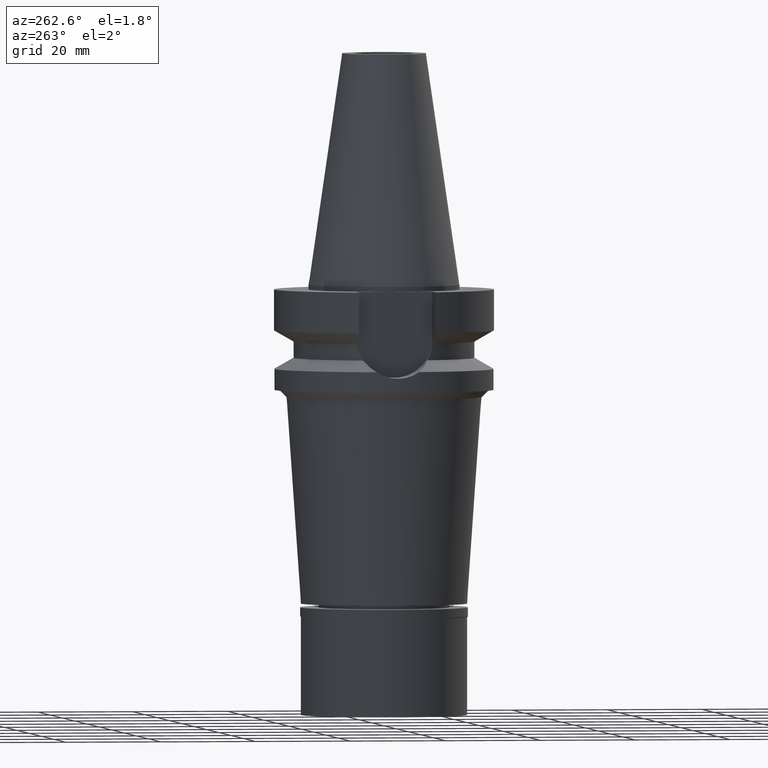
[diagram: clean part render]
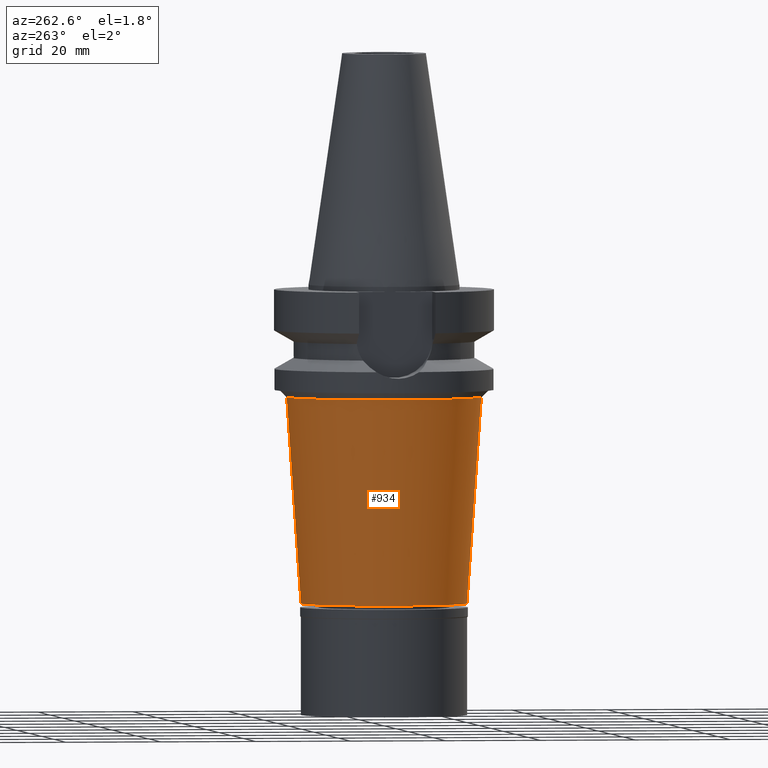
[diagram: same view with one face highlighted and labeled with its STEP entity id]
A machine part, auxiliary view. The second image highlights one B-rep face of the part: STEP entity #934.
In plain terms, the highlighted conical surface has half-angle 4 deg.
Its self-contained STEP definition (entity closure, byte-faithful):
#63 = AXIS2_PLACEMENT_3D ( 'NONE', #1714, #2460, #556 ) ;
#67 = VECTOR ( 'NONE', #2637, 1000.000000000000000 ) ;
#78 = CARTESIAN_POINT ( 'NONE',  ( 0.0000000000000000000, 0.0000000000000000000, -66.69999999999998863 ) ) ;
#270 = CARTESIAN_POINT ( 'NONE',  ( 0.0000000000000000000, 20.52083827595999921, -23.50000000000000000 ) ) ;
#455 = AXIS2_PLACEMENT_3D ( 'NONE', #484, #1212, #2166 ) ;
#484 = CARTESIAN_POINT ( 'NONE',  ( 0.0000000000000000000, 0.0000000000000000000, -45.10000000000000142 ) ) ;
#514 = CIRCLE ( 'NONE', #1684, 17.50000000000000000 ) ;
#556 = DIRECTION ( 'NONE',  ( 0.0000000000000000000, -1.000000000000000000, 0.0000000000000000000 ) ) ;
#808 = CARTESIAN_POINT ( 'NONE',  ( 0.0000000000000000000, 17.50000000000000000, -66.69999999999998863 ) ) ;
#934 = ADVANCED_FACE ( 'NONE', ( #1909 ), #1182, .T. ) ;
#964 = VECTOR ( 'NONE', #2435, 1000.000000000000000 ) ;
#1095 = ORIENTED_EDGE ( 'NONE', *, *, #2049, .T. ) ;
#1182 = CONICAL_SURFACE ( 'NONE', #455, 19.01041913797999783, 0.06981317007975955391 ) ;
#1206 = ORIENTED_EDGE ( 'NONE', *, *, #1633, .T. ) ;
#1212 = DIRECTION ( 'NONE',  ( 0.0000000000000000000, 0.0000000000000000000, 1.000000000000000000 ) ) ;
#1232 = ORIENTED_EDGE ( 'NONE', *, *, #2622, .T. ) ;
#1633 = EDGE_CURVE ( 'NONE', #2565, #1645, #514, .T. ) ;
#1645 = VERTEX_POINT ( 'NONE', #1744 ) ;
#1684 = AXIS2_PLACEMENT_3D ( 'NONE', #78, #2924, #2476 ) ;
#1713 = VERTEX_POINT ( 'NONE', #2387 ) ;
#1714 = CARTESIAN_POINT ( 'NONE',  ( 0.0000000000000000000, 0.0000000000000000000, -23.50000000000000000 ) ) ;
#1744 = CARTESIAN_POINT ( 'NONE',  ( 0.0000000000000000000, -17.50000000000000000, -66.69999999999998863 ) ) ;
#1748 = CARTESIAN_POINT ( 'NONE',  ( 0.0000000000000000000, -20.52083827595999921, -23.50000000000000000 ) ) ;
#1909 = FACE_OUTER_BOUND ( 'NONE', #2087, .T. ) ;
#1935 = CIRCLE ( 'NONE', #63, 20.52083827595999921 ) ;
#2002 = ORIENTED_EDGE ( 'NONE', *, *, #3032, .F. ) ;
#2049 = EDGE_CURVE ( 'NONE', #1713, #2565, #2390, .T. ) ;
#2087 = EDGE_LOOP ( 'NONE', ( #1206, #2002, #1232, #1095 ) ) ;
#2166 = DIRECTION ( 'NONE',  ( 0.0000000000000000000, 1.000000000000000000, 0.0000000000000000000 ) ) ;
#2317 = VERTEX_POINT ( 'NONE', #1748 ) ;
#2387 = CARTESIAN_POINT ( 'NONE',  ( 0.0000000000000000000, 20.52083827595999921, -23.50000000000000000 ) ) ;
#2390 = LINE ( 'NONE', #270, #964 ) ;
#2395 = CARTESIAN_POINT ( 'NONE',  ( 0.0000000000000000000, -20.52083827595999921, -23.50000000000000000 ) ) ;
#2435 = DIRECTION ( 'NONE',  ( 0.0000000000000000000, -0.06975647374413168622, -0.9975640502598238646 ) ) ;
#2460 = DIRECTION ( 'NONE',  ( 0.0000000000000000000, 0.0000000000000000000, -1.000000000000000000 ) ) ;
#2476 = DIRECTION ( 'NONE',  ( 0.0000000000000000000, 1.000000000000000000, 0.0000000000000000000 ) ) ;
#2565 = VERTEX_POINT ( 'NONE', #808 ) ;
#2622 = EDGE_CURVE ( 'NONE', #2317, #1713, #1935, .T. ) ;
#2637 = DIRECTION ( 'NONE',  ( 0.0000000000000000000, 0.06975647374413168622, -0.9975640502598238646 ) ) ;
#2676 = LINE ( 'NONE', #2395, #67 ) ;
#2924 = DIRECTION ( 'NONE',  ( 0.0000000000000000000, 0.0000000000000000000, 1.000000000000000000 ) ) ;
#3032 = EDGE_CURVE ( 'NONE', #2317, #1645, #2676, .T. ) ;